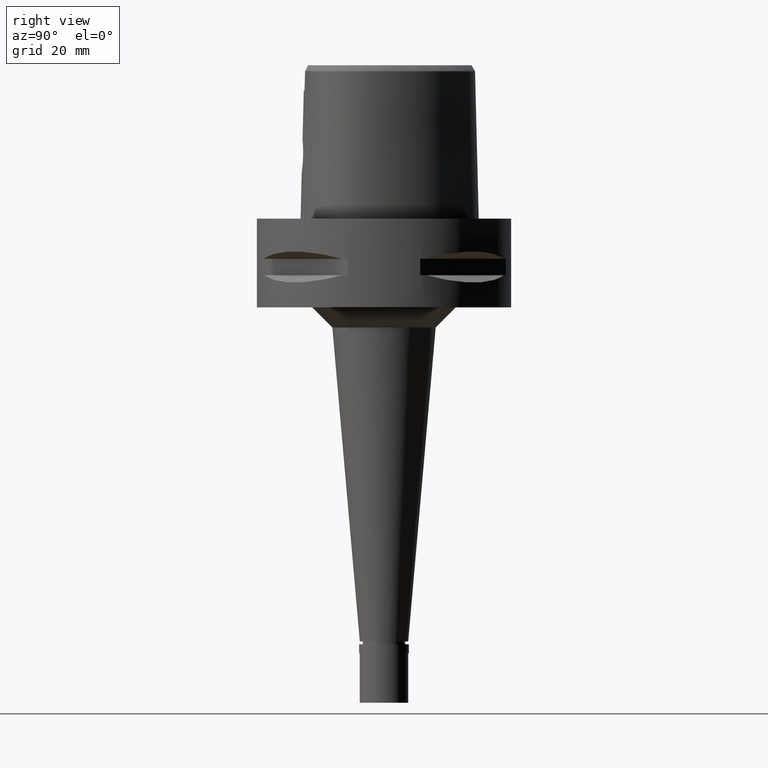
[diagram: clean part render]
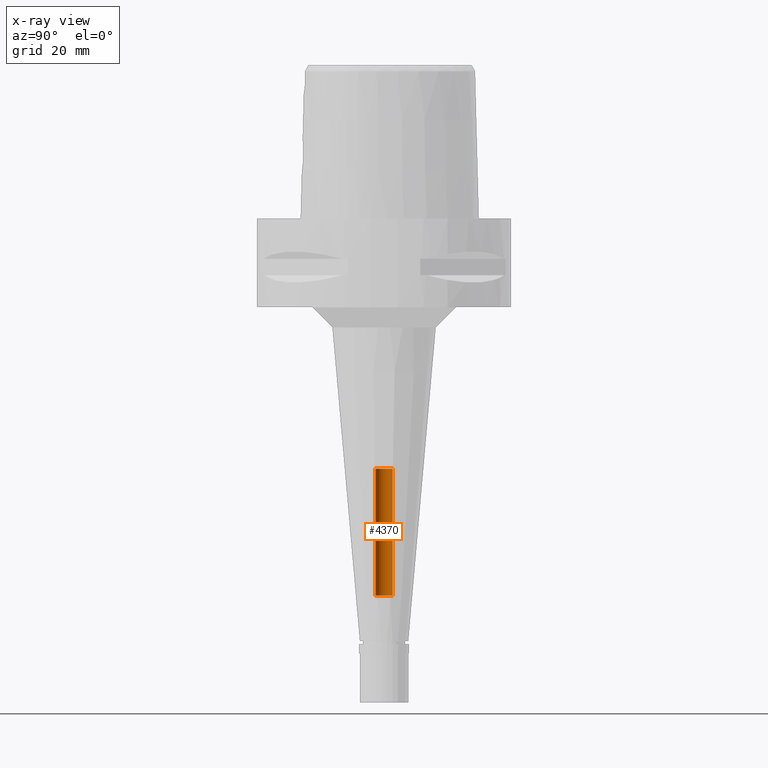
[diagram: x-ray — body ghosted, one internal face saturated and labeled with its STEP entity id]
A machine part, right view, then the same camera in x-ray: the body is ghosted and one INTERNAL B-rep face — a face not visible from any outside direction — is saturated and labeled: STEP entity #4370.
In plain terms, the highlighted cylindrical surface (edge-blend (fillet) strip) has radius 2.1 mm, axis along (0, 0, -1).
Its self-contained STEP definition (entity closure, byte-faithful):
#9 = CARTESIAN_POINT ( 'NONE',  ( 0.0000000000000000000, 1.295676313497999978E-14, -62.00000000000000000 ) ) ;
#380 = DIRECTION ( 'NONE',  ( 0.0000000000000000000, 0.0000000000000000000, 1.000000000000000000 ) ) ;
#620 = DIRECTION ( 'NONE',  ( 0.0000000000000000000, 0.0000000000000000000, 1.000000000000000000 ) ) ;
#645 = LINE ( 'NONE', #1428, #2781 ) ;
#910 = CARTESIAN_POINT ( 'NONE',  ( 0.0000000000000000000, 2.100000000000000089, -93.50000000000000000 ) ) ;
#965 = EDGE_CURVE ( 'NONE', #4007, #1705, #645, .T. ) ;
#1093 = AXIS2_PLACEMENT_3D ( 'NONE', #3781, #2675, #2228 ) ;
#1210 = EDGE_CURVE ( 'NONE', #4007, #3277, #1812, .T. ) ;
#1428 = CARTESIAN_POINT ( 'NONE',  ( 0.0000000000000000000, -2.100000000000000089, -93.50000000000000000 ) ) ;
#1519 = ORIENTED_EDGE ( 'NONE', *, *, #1210, .T. ) ;
#1520 = CARTESIAN_POINT ( 'NONE',  ( 0.0000000000000000000, -2.100000000000000089, -62.00000000000000000 ) ) ;
#1705 = VERTEX_POINT ( 'NONE', #1520 ) ;
#1740 = DIRECTION ( 'NONE',  ( 0.0000000000000000000, -1.000000000000000000, 0.0000000000000000000 ) ) ;
#1812 = CIRCLE ( 'NONE', #1093, 2.100000000000000089 ) ;
#1880 = DIRECTION ( 'NONE',  ( 0.0000000000000000000, 0.0000000000000000000, 1.000000000000000000 ) ) ;
#2064 = CARTESIAN_POINT ( 'NONE',  ( 0.0000000000000000000, 1.295676313497999978E-14, 5.799999999999999822 ) ) ;
#2066 = AXIS2_PLACEMENT_3D ( 'NONE', #2064, #4396, #1740 ) ;
#2091 = CYLINDRICAL_SURFACE ( 'NONE', #2066, 2.100000000000000089 ) ;
#2112 = VECTOR ( 'NONE', #1880, 1000.000000000000000 ) ;
#2141 = CIRCLE ( 'NONE', #2790, 2.100000000000000089 ) ;
#2228 = DIRECTION ( 'NONE',  ( 0.0000000000000000000, -1.000000000000000000, 0.0000000000000000000 ) ) ;
#2427 = EDGE_LOOP ( 'NONE', ( #4258, #4447, #1519, #3381 ) ) ;
#2675 = DIRECTION ( 'NONE',  ( 0.0000000000000000000, 0.0000000000000000000, -1.000000000000000000 ) ) ;
#2781 = VECTOR ( 'NONE', #620, 1000.000000000000000 ) ;
#2790 = AXIS2_PLACEMENT_3D ( 'NONE', #9, #380, #4194 ) ;
#2825 = FACE_OUTER_BOUND ( 'NONE', #2427, .T. ) ;
#2882 = CARTESIAN_POINT ( 'NONE',  ( 0.0000000000000000000, 2.100000000000000089, -62.00000000000000000 ) ) ;
#3277 = VERTEX_POINT ( 'NONE', #910 ) ;
#3325 = VERTEX_POINT ( 'NONE', #2882 ) ;
#3381 = ORIENTED_EDGE ( 'NONE', *, *, #4535, .T. ) ;
#3736 = LINE ( 'NONE', #4520, #2112 ) ;
#3781 = CARTESIAN_POINT ( 'NONE',  ( 0.0000000000000000000, 1.295676313497999978E-14, -93.50000000000000000 ) ) ;
#3883 = CARTESIAN_POINT ( 'NONE',  ( 0.0000000000000000000, -2.100000000000000089, -93.50000000000000000 ) ) ;
#4007 = VERTEX_POINT ( 'NONE', #3883 ) ;
#4194 = DIRECTION ( 'NONE',  ( 0.0000000000000000000, 1.000000000000000000, 0.0000000000000000000 ) ) ;
#4238 = EDGE_CURVE ( 'NONE', #3325, #1705, #2141, .T. ) ;
#4258 = ORIENTED_EDGE ( 'NONE', *, *, #4238, .T. ) ;
#4370 = ADVANCED_FACE ( 'NONE', ( #2825 ), #2091, .F. ) ;
#4396 = DIRECTION ( 'NONE',  ( 0.0000000000000000000, 0.0000000000000000000, -1.000000000000000000 ) ) ;
#4447 = ORIENTED_EDGE ( 'NONE', *, *, #965, .F. ) ;
#4520 = CARTESIAN_POINT ( 'NONE',  ( 0.0000000000000000000, 2.100000000000000089, -93.50000000000000000 ) ) ;
#4535 = EDGE_CURVE ( 'NONE', #3277, #3325, #3736, .T. ) ;